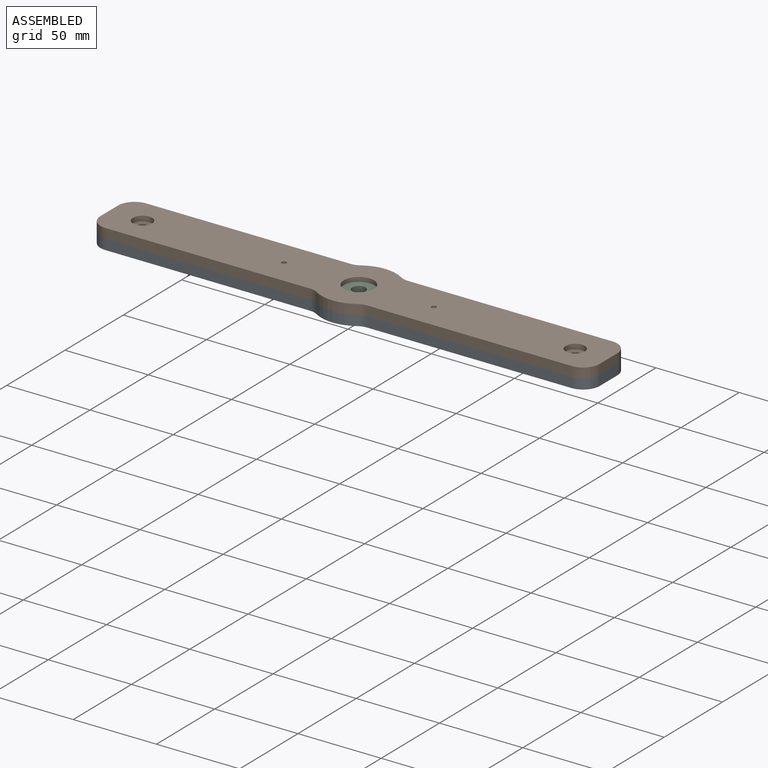
[diagram: assembled view]
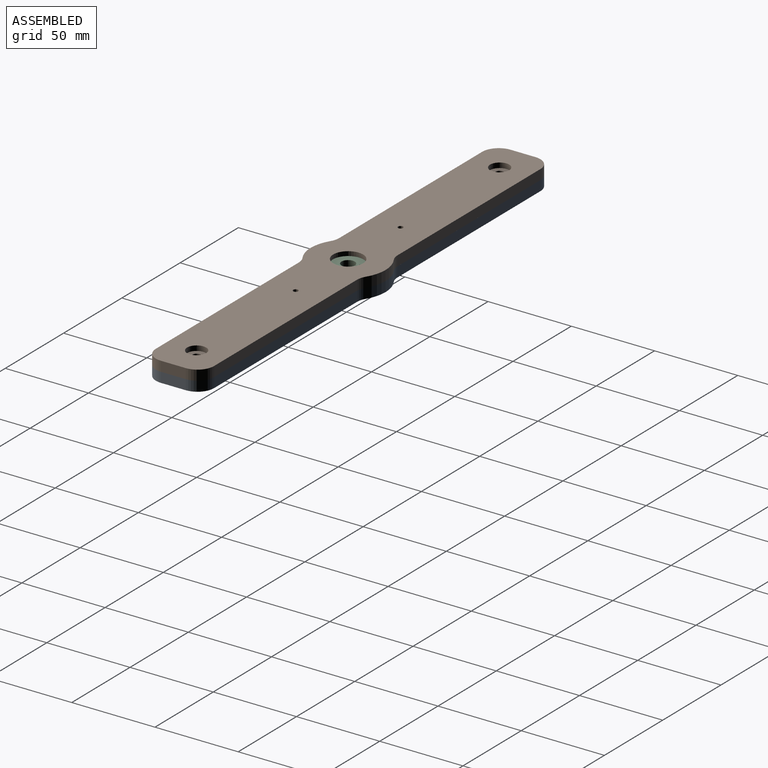
[diagram: assembled view, second angle]
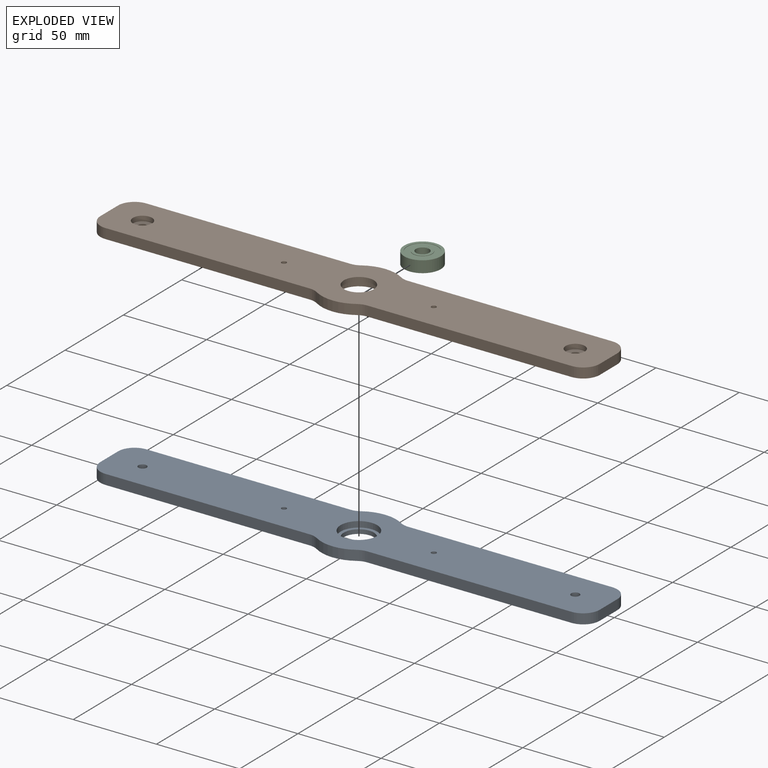
[diagram: exploded view]
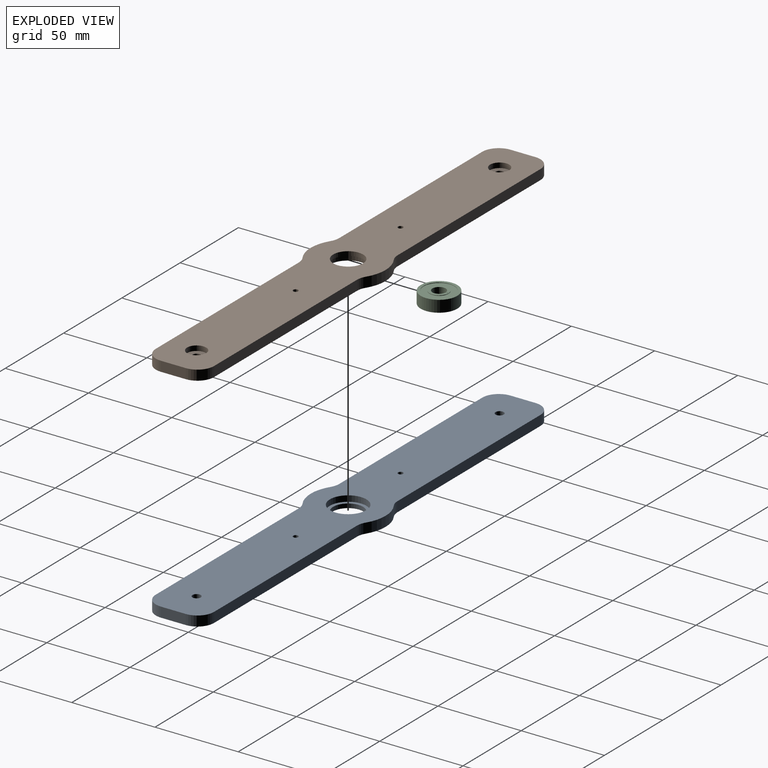
[diagram: exploded view, second angle]
ASSEMBLY  parts=3 mates=2
PART A: 25 faces, bbox 300x45x6 mm
  f0: plane 22x22mm, normal (0,0,1), area 125.7mm2, adj f1,f3
  f1: cylinder r=9mm len=18mm, axis (0,0,-1), area 141.4mm2, adj f0,f22
  f2: cylinder r=1.5mm len=6mm, axis (0,0,-1), area 56.5mm2, adj f22,f23
  f3: cylinder r=11mm len=22mm, axis (0,0,-1), area 241.9mm2, adj f0,f23
  f4: cylinder r=2.5mm len=6mm, axis (0,0,-1), area 94.2mm2, adj f22,f23
  f5: cylinder r=2.5mm len=6mm, axis (0,0,-1), area 94.2mm2, adj f22,f23
  f6: cylinder r=10mm len=6mm, axis (0,0,1), area 33.7mm2, adj f7,f21,f22,f23
  f7: plane 122.68x6mm, normal (0,-1,0), area 736.1mm2, adj f6,f8,f22,f23
  f8: cylinder r=10mm len=10mm, axis (0,0,1), area 94.2mm2, adj f7,f9,f22,f23
  f9: plane 15x6mm, normal (1,0,0), area 90mm2, adj f8,f10,f22,f23
  f10: cylinder r=10mm len=10mm, axis (0,0,1), area 94.2mm2, adj f9,f11,f22,f23
  f11: plane 122.68x6mm, normal (0,1,0), area 736.1mm2, adj f10,f12,f22,f23
  f12: cylinder r=10mm len=6mm, axis (0,0,1), area 33.7mm2, adj f11,f13,f22,f23
  f13: cylinder r=22.5mm len=23.98mm, axis (0,0,1), area 151.8mm2, adj f12,f14,f22,f23
  f14: cylinder r=10mm len=6mm, axis (0,0,1), area 33.7mm2, adj f13,f15,f22,f23
  f15: plane 122.68x6mm, normal (0,1,0), area 736.1mm2, adj f14,f16,f22,f23
  f16: cylinder r=10mm len=10mm, axis (0,0,1), area 94.2mm2, adj f15,f17,f22,f23
  f17: plane 15x6mm, normal (-1,0,0), area 90mm2, adj f16,f18,f22,f23
  f18: cylinder r=10mm len=10mm, axis (0,0,1), area 94.2mm2, adj f17,f19,f22,f23
  f19: plane 122.68x6mm, normal (0,-1,0), area 736.1mm2, adj f18,f20,f22,f23
  f20: cylinder r=10mm len=6mm, axis (0,0,1), area 33.7mm2, adj f19,f21,f22,f23
  f21: cylinder r=22.5mm len=23.98mm, axis (0,0,1), area 151.8mm2, adj f6,f20,f22,f23
  f22: plane 300x45mm, normal (0,0,-1), area 10303.2mm2, adj f1,f2,f4,f5,f6,f7,f8,f9
  f23: plane 300x45mm, normal (0,0,1), area 10177.5mm2, adj f2,f3,f4,f5,f6,f7,f8,f9
  f24: cylinder r=1.5mm len=6mm, axis (0,0,-1), area 56.5mm2, adj f22,f23
PART B: 29 faces, bbox 300x45x6 mm
  f0: plane 22x22mm, normal (0,0,-1), area 125.7mm2, adj f3,f7
  f1: plane 11.5x11.5mm, normal (0,0,1), area 84.2mm2, adj f4,f8
  f2: plane 11.5x11.5mm, normal (0,0,1), area 84.2mm2, adj f5,f9
  f3: cylinder r=11mm len=22mm, axis (0,0,1), area 241.9mm2, adj f0,f26
  f4: cylinder r=2.5mm len=5mm, axis (0,0,-1), area 47.1mm2, adj f1,f26
  f5: cylinder r=2.5mm len=5mm, axis (0,0,-1), area 47.1mm2, adj f2,f26
  f6: cylinder r=1.5mm len=6mm, axis (0,0,-1), area 56.5mm2, adj f26,f27
  f7: cylinder r=9mm len=18mm, axis (0,0,-1), area 141.4mm2, adj f0,f27
  f8: cylinder r=5.75mm len=11.5mm, axis (0,0,-1), area 108.4mm2, adj f1,f27
  f9: cylinder r=5.75mm len=11.5mm, axis (0,0,-1), area 108.4mm2, adj f2,f27
  f10: cylinder r=10mm len=6mm, axis (0,0,1), area 33.7mm2, adj f11,f25,f26,f27
  f11: plane 122.68x6mm, normal (0,-1,0), area 736.1mm2, adj f10,f12,f26,f27
  f12: cylinder r=10mm len=10mm, axis (0,0,1), area 94.2mm2, adj f11,f13,f26,f27
  f13: plane 15x6mm, normal (1,0,0), area 90mm2, adj f12,f14,f26,f27
  f14: cylinder r=10mm len=10mm, axis (0,0,1), area 94.2mm2, adj f13,f15,f26,f27
  f15: plane 122.68x6mm, normal (0,1,0), area 736.1mm2, adj f14,f16,f26,f27
  f16: cylinder r=10mm len=6mm, axis (0,0,1), area 33.7mm2, adj f15,f17,f26,f27
  f17: cylinder r=22.5mm len=23.98mm, axis (0,0,1), area 151.8mm2, adj f16,f18,f26,f27
  f18: cylinder r=10mm len=6mm, axis (0,0,1), area 33.7mm2, adj f17,f19,f26,f27
  f19: plane 122.68x6mm, normal (0,1,0), area 736.1mm2, adj f18,f20,f26,f27
  f20: cylinder r=10mm len=10mm, axis (0,0,1), area 94.2mm2, adj f19,f21,f26,f27
  f21: plane 15x6mm, normal (-1,0,0), area 90mm2, adj f20,f22,f26,f27
  f22: cylinder r=10mm len=10mm, axis (0,0,1), area 94.2mm2, adj f21,f23,f26,f27
  f23: plane 122.68x6mm, normal (0,-1,0), area 736.1mm2, adj f22,f24,f26,f27
  f24: cylinder r=10mm len=6mm, axis (0,0,1), area 33.7mm2, adj f23,f25,f26,f27
  f25: cylinder r=22.5mm len=23.98mm, axis (0,0,1), area 151.8mm2, adj f10,f24,f26,f27
  f26: plane 300x45mm, normal (0,0,-1), area 10177.5mm2, adj f3,f4,f5,f6,f10,f11,f12,f13
  f27: plane 300x45mm, normal (0,0,1), area 10134.7mm2, adj f6,f7,f8,f9,f10,f11,f12,f13
  f28: cylinder r=1.5mm len=6mm, axis (0,0,-1), area 56.5mm2, adj f26,f27
PART C: 20 faces, bbox 22x22x7 mm
  f0: cylinder r=11mm len=22mm, axis (0,0,1), area 483.8mm2, adj f1,f2
  f1: plane 22x22mm, normal (0,0,1), area 111.3mm2, adj f0,f3
  f2: plane 22x22mm, normal (0,0,-1), area 111.3mm2, adj f0,f4
  f3: cylinder r=9.25mm len=18.5mm, axis (0,0,1), area 14.5mm2, adj f1,f5
  f4: cylinder r=9.25mm len=18.5mm, axis (0,0,1), area 14.5mm2, adj f2,f6
  f5: plane 18.5x18.5mm, normal (0,0,1), area 164.9mm2, adj f3,f8
  f6: plane 18.5x18.5mm, normal (0,0,-1), area 164.9mm2, adj f4,f9
  f7: plane 0.75x0.1mm, normal (0,-1,0), area 0.1mm2, adj f11,f12,f13,f14
  f8: cylinder r=5.75mm len=11.5mm, axis (0,0,1), area 9mm2, adj f5,f14
  f9: cylinder r=5.75mm len=11.5mm, axis (0,0,1), area 9mm2, adj f6,f17
  f10: plane 1.53x0.1mm, normal (-1,0,0), area 0.2mm2, adj f15,f16,f17,f18
  f11: plane 1.52x0.1mm, normal (1,0,0), area 0.2mm2, adj f7,f12,f14,f18
  f12: plane 1.52x0.75mm, normal (0,0,1), area 1.1mm2, adj f7,f11,f13,f18
  f13: plane 1.52x0.1mm, normal (-1,0,0), area 0.2mm2, adj f7,f12,f14,f18
  f14: plane 11.5x11.5mm, normal (0,0,1), area 52.5mm2, adj f7,f8,f11,f13,f18
  f15: plane 1.53x1mm, normal (0,0,-1), area 1.5mm2, adj f10,f16,f18,f19
  f16: plane 1x0.1mm, normal (0,-1,0), area 0.1mm2, adj f10,f15,f17,f19
  f17: plane 11.5x11.5mm, normal (0,0,-1), area 52.1mm2, adj f9,f10,f16,f18,f19
  f18: cylinder r=4mm len=8mm, axis (0,0,1), area 175.8mm2, adj f10,f11,f12,f13,f14,f15,f17,f19
  f19: plane 1.53x0.1mm, normal (1,0,0), area 0.2mm2, adj f15,f16,f17,f18
PLACE A t=(-198.08,-7.64,151.08)mm
PLACE B t=(-198.08,-7.64,157.08)mm
PLACE C t=(-198.08,-7.64,153.58)mm
MATE fastened A.f1 <-> C.f0  axis (0,0,1) through (-198.08,-7.64,153.58)mm
MATE fastened C.f0 <-> B.f3  axis (0,0,1) through (-198.08,-7.64,160.58)mm
